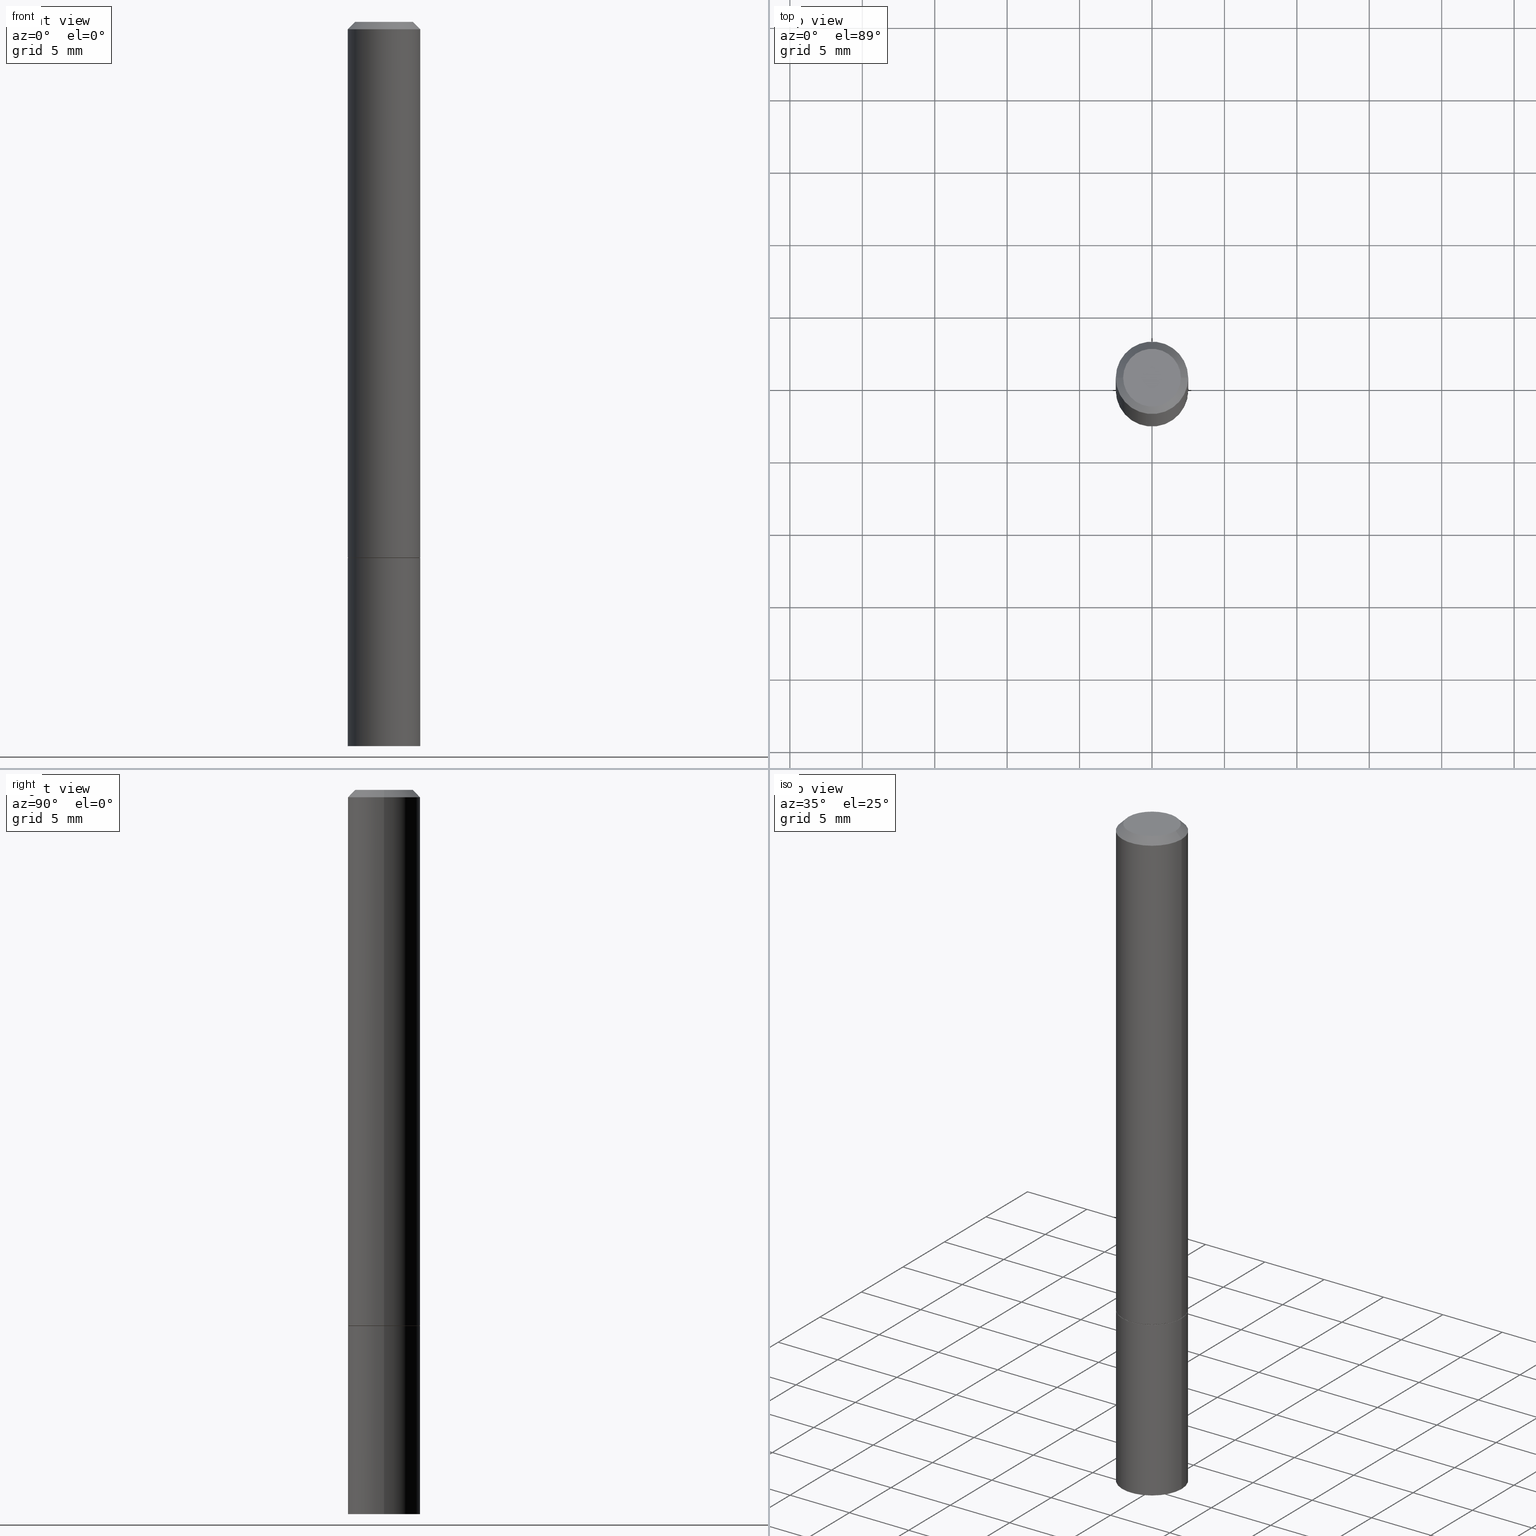
[diagram: canonical four-view strip — front | top / right | iso, engineering-drawing reading convention]
A machine part, canonical four-view strip (front | top / right | iso — engineering-drawing reading convention). The complete STEP part file that produces these views, byte-faithful:
ISO-10303-21;
HEADER;
FILE_DESCRIPTION (( 'STEP AP203' ),
    '1' );
FILE_NAME ('44552.STEP',
    '2024-02-28T06:40:56',
    ( '' ),
    ( '' ),
    'SwSTEP 2.0',
    'SolidWorks 2023',
    '' );
FILE_SCHEMA (( 'CONFIG_CONTROL_DESIGN' ));
ENDSEC;

DATA;
#1 = EDGE_LOOP ( 'NONE', ( #33, #95, #199, #168 ) ) ;
#2 = CARTESIAN_POINT ( 'NONE',  ( 0.000000000000000000, 0.000000000000000000, 0.000000000000000000 ) ) ;
#3 = CARTESIAN_POINT ( 'NONE',  ( -0.09845000000000000973, -1.876660182509593708E-15, -1.455699999999999994 ) ) ;
#4 = LINE ( 'NONE', #189, #74 ) ;
#5 = ORIENTED_EDGE ( 'NONE', *, *, #67, .F. ) ;
#6 = VECTOR ( 'NONE', #123, 39.37007874015748143 ) ;
#7 = ADVANCED_FACE ( 'NONE', ( #17 ), #233, .F. ) ;
#8 = AXIS2_PLACEMENT_3D ( 'NONE', #348, #98, #349 ) ;
#9 = DIRECTION ( 'NONE',  ( 1.000000000000000000, -6.982962677686265922E-15, 4.876176775795935793E-29 ) ) ;
#10 = ADVANCED_FACE ( 'NONE', ( #79 ), #136, .T. ) ;
#11 = DATE_AND_TIME ( #41, #149 ) ;
#12 = DIRECTION ( 'NONE',  ( -2.445468806185136877E-29, 3.491481338843145188E-15, 1.000000000000000000 ) ) ;
#13 = LOCAL_TIME ( 1, 40, 56.00000000000000000, #191 ) ;
#14 = AXIS2_PLACEMENT_3D ( 'NONE', #138, #232, #194 ) ;
#15 = APPROVAL_DATE_TIME ( #155, #131 ) ;
#16 = APPROVAL_DATE_TIME ( #323, #181 ) ;
#17 = FACE_OUTER_BOUND ( 'NONE', #262, .T. ) ;
#18 = AXIS2_PLACEMENT_3D ( 'NONE', #91, #92, #209 ) ;
#19 = ORIENTED_EDGE ( 'NONE', *, *, #57, .T. ) ;
#20 = DIRECTION ( 'NONE',  ( -2.438088387897960049E-29, 3.491481338843145188E-15, 1.000000000000000000 ) ) ;
#21 = DIRECTION ( 'NONE',  ( 0.7071067811865464625, -7.319954787623252890E-15, -0.7071067811865485719 ) ) ;
#22 = DIRECTION ( 'NONE',  ( -2.445468806185136597E-29, 3.491481338843145583E-15, 1.000000000000000000 ) ) ;
#23 = DIRECTION ( 'NONE',  ( 1.000000000000000000, -6.982962677686265922E-15, 4.876176775795935793E-29 ) ) ;
#24 = ORIENTED_EDGE ( 'NONE', *, *, #177, .T. ) ;
#25 = CONICAL_SURFACE ( 'NONE', #247, 0.09844999999999980156, 0.7853981633974468357 ) ;
#26 = CC_DESIGN_PERSON_AND_ORGANIZATION_ASSIGNMENT ( #270, #107, ( #154 ) ) ;
#27 = VERTEX_POINT ( 'NONE', #251 ) ;
#28 = ORGANIZATION ( 'UNSPECIFIED', 'UNSPECIFIED', '' ) ;
#29 = DIRECTION ( 'NONE',  ( -2.445468806185136597E-29, 3.491481338843145583E-15, 1.000000000000000000 ) ) ;
#30 = LENGTH_MEASURE_WITH_UNIT ( LENGTH_MEASURE( 0.02539999999999999897 ), #264 );
#31 = ORIENTED_EDGE ( 'NONE', *, *, #67, .T. ) ;
#32 = CARTESIAN_POINT ( 'NONE',  ( 0.000000000000000000, 0.000000000000000000, 0.000000000000000000 ) ) ;
#33 = ORIENTED_EDGE ( 'NONE', *, *, #320, .F. ) ;
#34 = CARTESIAN_POINT ( 'NONE',  ( -0.09844999999999999585, -5.279981617546952572E-15, -1.968500000000000139 ) ) ;
#35 = CARTESIAN_POINT ( 'NONE',  ( 0.07844999999999985318, -6.417258612913222427E-16, 4.159044147803933312E-30 ) ) ;
#36 = EDGE_CURVE ( 'NONE', #255, #27, #166, .T. ) ;
#37 = DIRECTION ( 'NONE',  ( -2.445468806185136877E-29, 3.491481338843145188E-15, 1.000000000000000000 ) ) ;
#38 = MANIFOLD_SOLID_BREP ( 'Body-Move/Copy2[1]', #266 ) ;
#39 = CIRCLE ( 'NONE', #106, 0.09844999999999980156 ) ;
#40 = APPLICATION_PROTOCOL_DEFINITION ( 'international standard', 'config_control_design', 1994, #274 ) ;
#41 = CALENDAR_DATE ( 2024, 28, 2 ) ;
#42 = CONICAL_SURFACE ( 'NONE', #18, 0.09844999999999980156, 0.7853981633974468357 ) ;
#43 = PERSON_AND_ORGANIZATION ( #360, #28 ) ;
#44 = PRODUCT_DEFINITION_SHAPE ( 'NONE', 'NONE',  #346 ) ;
#45 = VERTEX_POINT ( 'NONE', #137 ) ;
#46 = VERTEX_POINT ( 'NONE', #329 ) ;
#47 = CIRCLE ( 'NONE', #145, 0.07844999999999985318 ) ;
#48 = CARTESIAN_POINT ( 'NONE',  ( 3.559868941163703312E-29, -5.082549384953967438E-15, -1.455699999999999994 ) ) ;
#49 = CARTESIAN_POINT ( 'NONE',  ( 0.000000000000000000, 0.000000000000000000, 0.000000000000000000 ) ) ;
#50 = ORIENTED_EDGE ( 'NONE', *, *, #108, .F. ) ;
#51 = CARTESIAN_POINT ( 'NONE',  ( 6.874726756182484532E-16, 0.09844999999999490270, -1.456700000000000328 ) ) ;
#52 = DIMENSIONAL_EXPONENTS ( 1.000000000000000000, 0.000000000000000000, 0.000000000000000000, 0.000000000000000000, 0.000000000000000000, 0.000000000000000000, 0.000000000000000000 ) ;
#53 = EDGE_LOOP ( 'NONE', ( #364, #238 ) ) ;
#54 = DIRECTION ( 'NONE',  ( 2.438088387897960049E-29, -3.491481338843145188E-15, -1.000000000000000000 ) ) ;
#55 = AXIS2_PLACEMENT_3D ( 'NONE', #111, #226, #331 ) ;
#56 = DIRECTION ( 'NONE',  ( -2.445468806185136597E-29, 3.491481338843145583E-15, 1.000000000000000000 ) ) ;
#57 = EDGE_CURVE ( 'NONE', #45, #352, #77, .T. ) ;
#58 = CYLINDRICAL_SURFACE ( 'NONE', #162, 0.09844999999999991258 ) ;
#59 = CC_DESIGN_DATE_AND_TIME_ASSIGNMENT ( #11, #187, ( #346 ) ) ;
#60 = FACE_OUTER_BOUND ( 'NONE', #333, .T. ) ;
#61 = VECTOR ( 'NONE', #224, 39.37007874015748143 ) ;
#62 = FACE_OUTER_BOUND ( 'NONE', #164, .T. ) ;
#63 = ADVANCED_FACE ( 'NONE', ( #110 ), #25, .T. ) ;
#64 = ORIENTED_EDGE ( 'NONE', *, *, #223, .T. ) ;
#65 = CARTESIAN_POINT ( 'NONE',  ( 0.09844999999999980156, -7.452456546574689274E-16, -0.02000000000000001776 ) ) ;
#66 = CARTESIAN_POINT ( 'NONE',  ( 3.559868941163703312E-29, -5.082549384953967438E-15, -1.455699999999999994 ) ) ;
#67 = EDGE_CURVE ( 'NONE', #356, #143, #152, .T. ) ;
#68 = ORIENTED_EDGE ( 'NONE', *, *, #254, .T. ) ;
#69 = APPROVAL_STATUS ( 'not_yet_approved' ) ;
#70 = CIRCLE ( 'NONE', #366, 0.09844999999999980156 ) ;
#71 = APPROVAL_STATUS ( 'not_yet_approved' ) ;
#72 = FACE_OUTER_BOUND ( 'NONE', #258, .T. ) ;
#73 = PERSON_AND_ORGANIZATION ( #360, #28 ) ;
#74 = VECTOR ( 'NONE', #12, 39.37007874015748143 ) ;
#75 = APPROVAL_ROLE ( '' ) ;
#76 = ORIENTED_EDGE ( 'NONE', *, *, #205, .F. ) ;
#77 = LINE ( 'NONE', #252, #132 ) ;
#78 = CARTESIAN_POINT ( 'NONE',  ( 0.000000000000000000, 0.000000000000000000, 0.000000000000000000 ) ) ;
#79 = FACE_OUTER_BOUND ( 'NONE', #358, .T. ) ;
#80 = CIRCLE ( 'NONE', #318, 0.09844999999999999585 ) ;
#81 = FACE_OUTER_BOUND ( 'NONE', #192, .T. ) ;
#82 = ORIENTED_EDGE ( 'NONE', *, *, #134, .F. ) ;
#83 = APPROVAL_PERSON_ORGANIZATION ( #103, #131, #100 ) ;
#84 = CARTESIAN_POINT ( 'NONE',  ( -0.09744999999999999496, -4.393616970294593343E-15, -1.456700000000000106 ) ) ;
#85 = EDGE_LOOP ( 'NONE', ( #141, #124, #361, #230 ) ) ;
#86 = DIRECTION ( 'NONE',  ( -2.445468806185136597E-29, 3.491481338843145583E-15, 1.000000000000000000 ) ) ;
#87 = CARTESIAN_POINT ( 'NONE',  ( -0.09844999999999999585, 6.995293233558186035E-16, -4.842691596355954042E-30 ) ) ;
#88 = AXIS2_PLACEMENT_3D ( 'NONE', #169, #20, #23 ) ;
#89 = FACE_OUTER_BOUND ( 'NONE', #53, .T. ) ;
#90 = DIRECTION ( 'NONE',  ( -2.445468806185136597E-29, 3.491481338843145583E-15, 1.000000000000000000 ) ) ;
#91 = CARTESIAN_POINT ( 'NONE',  ( 4.890937612370276662E-31, -6.982962677686296539E-17, -0.02000000000000001776 ) ) ;
#92 = DIRECTION ( 'NONE',  ( 2.445468806185136597E-29, -3.491481338843145583E-15, -1.000000000000000000 ) ) ;
#93 = EDGE_CURVE ( 'NONE', #342, #46, #146, .T. ) ;
#94 = AXIS2_PLACEMENT_3D ( 'NONE', #78, #234, #335 ) ;
#95 = ORIENTED_EDGE ( 'NONE', *, *, #134, .T. ) ;
#96 = CARTESIAN_POINT ( 'NONE',  ( 0.09845000000000000973, -5.770022060572179999E-15, -1.455699999999999994 ) ) ;
#97 = APPROVAL_PERSON_ORGANIZATION ( #73, #181, #184 ) ;
#98 = DIRECTION ( 'NONE',  ( 0.000000000000000000, 0.000000000000000000, 1.000000000000000000 ) ) ;
#99 = AXIS2_PLACEMENT_3D ( 'NONE', #357, #86, #313 ) ;
#100 = APPROVAL_ROLE ( '' ) ;
#101 =( GEOMETRIC_REPRESENTATION_CONTEXT ( 3 ) GLOBAL_UNCERTAINTY_ASSIGNED_CONTEXT ( ( #217 ) ) GLOBAL_UNIT_ASSIGNED_CONTEXT ( ( #122, #321, #210 ) ) REPRESENTATION_CONTEXT ( 'NONE', 'WORKASPACE' ) );
#102 = APPROVAL ( #186, 'UNSPECIFIED' ) ;
#103 = PERSON_AND_ORGANIZATION ( #360, #28 ) ;
#104 = PERSON_AND_ORGANIZATION ( #360, #28 ) ;
#105 = CIRCLE ( 'NONE', #55, 0.09844999999999999585 ) ;
#106 = AXIS2_PLACEMENT_3D ( 'NONE', #286, #317, #365 ) ;
#107 = PERSON_AND_ORGANIZATION_ROLE ( 'classification_officer' ) ;
#108 = EDGE_CURVE ( 'NONE', #143, #27, #4, .T. ) ;
#109 = CARTESIAN_POINT ( 'NONE',  ( -0.09844999999999980156, 6.176430488413486702E-16, -0.02000000000000001776 ) ) ;
#110 = FACE_OUTER_BOUND ( 'NONE', #1, .T. ) ;
#111 = CARTESIAN_POINT ( 'NONE',  ( 4.813905344975441835E-29, -6.872981015512731707E-15, -1.968500000000000139 ) ) ;
#112 = ORIENTED_EDGE ( 'NONE', *, *, #218, .T. ) ;
#113 = AXIS2_PLACEMENT_3D ( 'NONE', #49, #139, #229 ) ;
#114 = PLANE ( 'NONE',  #278 ) ;
#115 = ORIENTED_EDGE ( 'NONE', *, *, #246, .F. ) ;
#116 = VERTEX_POINT ( 'NONE', #359 ) ;
#117 = LINE ( 'NONE', #310, #203 ) ;
#118 = ADVANCED_FACE ( 'NONE', ( #334 ), #197, .T. ) ;
#119 = CYLINDRICAL_SURFACE ( 'NONE', #94, 0.09844999999999999585 ) ;
#120 = ORIENTED_EDGE ( 'NONE', *, *, #223, .F. ) ;
#121 = AXIS2_PLACEMENT_3D ( 'NONE', #256, #315, #253 ) ;
#122 =( CONVERSION_BASED_UNIT ( 'INCH', #30 ) LENGTH_UNIT ( ) NAMED_UNIT ( #52 ) );
#123 = DIRECTION ( 'NONE',  ( -2.445468806185136877E-29, 3.491481338843145188E-15, 1.000000000000000000 ) ) ;
#124 = ORIENTED_EDGE ( 'NONE', *, *, #93, .T. ) ;
#125 = CARTESIAN_POINT ( 'NONE',  ( 0.09844999999999999585, -5.773513541911023795E-15, -1.456700000000000106 ) ) ;
#126 = ORIENTED_EDGE ( 'NONE', *, *, #172, .F. ) ;
#127 = CIRCLE ( 'NONE', #299, 0.07844999999999985318 ) ;
#128 = DIRECTION ( 'NONE',  ( -2.445468806185136597E-29, 3.491481338843145583E-15, 1.000000000000000000 ) ) ;
#129 = SECURITY_CLASSIFICATION_LEVEL ( 'unclassified' ) ;
#130 = SHAPE_DEFINITION_REPRESENTATION ( #44, #235 ) ;
#131 = APPROVAL ( #71, 'UNSPECIFIED' ) ;
#132 = VECTOR ( 'NONE', #195, 39.37007874015748143 ) ;
#133 = PERSON_AND_ORGANIZATION ( #360, #28 ) ;
#134 = EDGE_CURVE ( 'NONE', #283, #178, #288, .T. ) ;
#135 = DATE_TIME_ROLE ( 'classification_date' ) ;
#136 = PLANE ( 'NONE',  #339 ) ;
#137 = CARTESIAN_POINT ( 'NONE',  ( 0.09844999999999999585, -7.560453691130944267E-15, -1.968500000000000139 ) ) ;
#138 = CARTESIAN_POINT ( 'NONE',  ( 3.562314409969888915E-29, -5.086040866292811234E-15, -1.456700000000000106 ) ) ;
#139 = DIRECTION ( 'NONE',  ( -2.445468806185136597E-29, 3.491481338843145583E-15, 1.000000000000000000 ) ) ;
#140 = CLOSED_SHELL ( 'NONE', ( #291, #261, #63, #277, #244, #304, #213, #7 ) ) ;
#141 = ORIENTED_EDGE ( 'NONE', *, *, #211, .T. ) ;
#142 = LINE ( 'NONE', #84, #215 ) ;
#143 = VERTEX_POINT ( 'NONE', #3 ) ;
#144 = LOCAL_TIME ( 1, 40, 56.00000000000000000, #271 ) ;
#145 = AXIS2_PLACEMENT_3D ( 'NONE', #148, #90, #9 ) ;
#146 = LINE ( 'NONE', #87, #6 ) ;
#147 = ORIENTED_EDGE ( 'NONE', *, *, #36, .T. ) ;
#148 = CARTESIAN_POINT ( 'NONE',  ( 0.000000000000000000, 0.000000000000000000, 0.000000000000000000 ) ) ;
#149 = LOCAL_TIME ( 1, 40, 56.00000000000000000, #249 ) ;
#150 = CARTESIAN_POINT ( 'NONE',  ( 4.890937612370276662E-31, -6.982962677686296539E-17, -0.02000000000000001776 ) ) ;
#151 = DIRECTION ( 'NONE',  ( 1.000000000000000000, -6.982962677686266711E-15, 0.000000000000000000 ) ) ;
#152 = CIRCLE ( 'NONE', #350, 0.09845000000000000973 ) ;
#153 = DATE_AND_TIME ( #300, #13 ) ;
#154 = SECURITY_CLASSIFICATION ( '', '', #129 ) ;
#155 = DATE_AND_TIME ( #188, #174 ) ;
#156 = CIRCLE ( 'NONE', #227, 0.09844999999999999585 ) ;
#157 = ADVANCED_FACE ( 'NONE', ( #72 ), #119, .T. ) ;
#158 = PERSON_AND_ORGANIZATION_ROLE ( 'design_owner' ) ;
#159 = PRODUCT_RELATED_PRODUCT_CATEGORY ( 'detail', '', ( #182 ) ) ;
#160 = APPLICATION_CONTEXT ( 'configuration controlled 3d designs of mechanical parts and assemblies' ) ;
#161 = EDGE_LOOP ( 'NONE', ( #294, #316, #112, #336 ) ) ;
#162 = AXIS2_PLACEMENT_3D ( 'NONE', #2, #179, #243 ) ;
#163 = ORIENTED_EDGE ( 'NONE', *, *, #201, .T. ) ;
#164 = EDGE_LOOP ( 'NONE', ( #82, #202, #147, #204 ) ) ;
#165 = DIRECTION ( 'NONE',  ( 1.000000000000000000, -6.982962677686265922E-15, 0.000000000000000000 ) ) ;
#166 = LINE ( 'NONE', #109, #61 ) ;
#167 = CC_DESIGN_PERSON_AND_ORGANIZATION_ASSIGNMENT ( #104, #351, ( #325 ) ) ;
#168 = ORIENTED_EDGE ( 'NONE', *, *, #36, .F. ) ;
#169 = CARTESIAN_POINT ( 'NONE',  ( 3.562314409969888915E-29, -5.086040866292811234E-15, -1.456700000000000106 ) ) ;
#170 = DIRECTION ( 'NONE',  ( -1.000000000000000000, 6.982962677686265922E-15, -4.876176775795935793E-29 ) ) ;
#171 = DIRECTION ( 'NONE',  ( -1.000000000000000000, 6.982962677686265922E-15, -4.876176775795935793E-29 ) ) ;
#172 = EDGE_CURVE ( 'NONE', #116, #268, #314, .T. ) ;
#173 = CARTESIAN_POINT ( 'NONE',  ( 3.562314409969888915E-29, -5.086040866292811234E-15, -1.456700000000000106 ) ) ;
#174 = LOCAL_TIME ( 1, 40, 56.00000000000000000, #219 ) ;
#175 = ORIENTED_EDGE ( 'NONE', *, *, #218, .F. ) ;
#176 = DIRECTION ( 'NONE',  ( 1.000000000000000000, -6.982962677686265922E-15, 0.000000000000000000 ) ) ;
#177 = EDGE_CURVE ( 'NONE', #268, #116, #222, .T. ) ;
#178 = VERTEX_POINT ( 'NONE', #354 ) ;
#179 = DIRECTION ( 'NONE',  ( -2.445468806185136597E-29, 3.491481338843145583E-15, 1.000000000000000000 ) ) ;
#180 = DIRECTION ( 'NONE',  ( -2.445468806185136597E-29, 3.491481338843145583E-15, 1.000000000000000000 ) ) ;
#181 = APPROVAL ( #69, 'UNSPECIFIED' ) ;
#182 = PRODUCT ( '44552', '44552', '', ( #345 ) ) ;
#183 = FACE_OUTER_BOUND ( 'NONE', #228, .T. ) ;
#184 = APPROVAL_ROLE ( '' ) ;
#185 = CONICAL_SURFACE ( 'NONE', #208, 0.09744999999999999496, 0.7853981633974227439 ) ;
#186 = APPROVAL_STATUS ( 'not_yet_approved' ) ;
#187 = DATE_TIME_ROLE ( 'creation_date' ) ;
#188 = CALENDAR_DATE ( 2024, 28, 2 ) ;
#189 = CARTESIAN_POINT ( 'NONE',  ( -0.09844999999999991258, 6.995293233558180118E-16, -4.842691596355949838E-30 ) ) ;
#190 = CONICAL_SURFACE ( 'NONE', #287, 0.09744999999999999496, 0.7853981633974227439 ) ;
#191 = COORDINATED_UNIVERSAL_TIME_OFFSET ( 5, 0, .BEHIND. ) ;
#192 = EDGE_LOOP ( 'NONE', ( #50, #68, #265, #115 ) ) ;
#193 = ORIENTED_EDGE ( 'NONE', *, *, #177, .F. ) ;
#194 = DIRECTION ( 'NONE',  ( 1.000000000000000000, -6.982962677686264344E-15, 0.000000000000000000 ) ) ;
#195 = DIRECTION ( 'NONE',  ( -2.445468806185136877E-29, 3.491481338843145188E-15, 1.000000000000000000 ) ) ;
#196 = CC_DESIGN_PERSON_AND_ORGANIZATION_ASSIGNMENT ( #133, #216, ( #325 ) ) ;
#197 = CYLINDRICAL_SURFACE ( 'NONE', #257, 0.09844999999999999585 ) ;
#198 = CYLINDRICAL_SURFACE ( 'NONE', #113, 0.09844999999999991258 ) ;
#199 = ORIENTED_EDGE ( 'NONE', *, *, #337, .T. ) ;
#200 = ADVANCED_FACE ( 'NONE', ( #89 ), #114, .F. ) ;
#201 = EDGE_CURVE ( 'NONE', #116, #143, #142, .T. ) ;
#202 = ORIENTED_EDGE ( 'NONE', *, *, #344, .F. ) ;
#203 = VECTOR ( 'NONE', #338, 39.37007874015748143 ) ;
#204 = ORIENTED_EDGE ( 'NONE', *, *, #246, .T. ) ;
#205 = EDGE_CURVE ( 'NONE', #46, #352, #332, .T. ) ;
#206 = DIRECTION ( 'NONE',  ( -2.445468806185136597E-29, 3.491481338843145583E-15, 1.000000000000000000 ) ) ;
#207 = LOCAL_TIME ( 1, 40, 56.00000000000000000, #324 ) ;
#208 = AXIS2_PLACEMENT_3D ( 'NONE', #319, #180, #295 ) ;
#209 = DIRECTION ( 'NONE',  ( -1.000000000000000000, 6.982962677686266711E-15, 0.000000000000000000 ) ) ;
#210 =( NAMED_UNIT ( * ) SI_UNIT ( $, .STERADIAN. ) SOLID_ANGLE_UNIT ( ) );
#211 = EDGE_CURVE ( 'NONE', #45, #342, #156, .T. ) ;
#212 = EDGE_LOOP ( 'NONE', ( #193, #126 ) ) ;
#213 = ADVANCED_FACE ( 'NONE', ( #281 ), #363, .F. ) ;
#214 = CALENDAR_DATE ( 2024, 28, 2 ) ;
#215 = VECTOR ( 'NONE', #289, 39.37007874015748143 ) ;
#216 = PERSON_AND_ORGANIZATION_ROLE ( 'creator' ) ;
#217 = UNCERTAINTY_MEASURE_WITH_UNIT (LENGTH_MEASURE( 1.000000000000000082E-05 ), #122, 'distance_accuracy_value', 'NONE');
#218 = EDGE_CURVE ( 'NONE', #268, #356, #117, .T. ) ;
#219 = COORDINATED_UNIVERSAL_TIME_OFFSET ( 5, 0, .BEHIND. ) ;
#220 = APPROVAL_PERSON_ORGANIZATION ( #327, #102, #75 ) ;
#221 = DATE_AND_TIME ( #269, #207 ) ;
#222 = CIRCLE ( 'NONE', #14, 0.09744999999999999496 ) ;
#223 = EDGE_CURVE ( 'NONE', #342, #45, #105, .T. ) ;
#224 = DIRECTION ( 'NONE',  ( -0.7071067811865464625, 2.468850131082245622E-15, -0.7071067811865485719 ) ) ;
#225 = CARTESIAN_POINT ( 'NONE',  ( 4.890937612370276662E-31, -6.982962677686296539E-17, -0.02000000000000001776 ) ) ;
#226 = DIRECTION ( 'NONE',  ( -2.445468806185136597E-29, 3.491481338843145583E-15, 1.000000000000000000 ) ) ;
#227 = AXIS2_PLACEMENT_3D ( 'NONE', #312, #307, #165 ) ;
#228 = EDGE_LOOP ( 'NONE', ( #31, #290, #241, #248 ) ) ;
#229 = DIRECTION ( 'NONE',  ( 1.000000000000000000, -6.982962677686266711E-15, 4.876176775795935793E-29 ) ) ;
#230 = ORIENTED_EDGE ( 'NONE', *, *, #57, .F. ) ;
#231 = DIRECTION ( 'NONE',  ( 1.000000000000000000, -6.982962677686266711E-15, 4.876176775795936353E-29 ) ) ;
#232 = DIRECTION ( 'NONE',  ( -2.445468806185136597E-29, 3.491481338843145583E-15, 1.000000000000000000 ) ) ;
#233 = PLANE ( 'NONE',  #328 ) ;
#234 = DIRECTION ( 'NONE',  ( -2.445468806185136597E-29, 3.491481338843145583E-15, 1.000000000000000000 ) ) ;
#235 = ADVANCED_BREP_SHAPE_REPRESENTATION ( '44552', ( #38, #280, #8 ), #101 ) ;
#236 = ORIENTED_EDGE ( 'NONE', *, *, #211, .F. ) ;
#237 = LINE ( 'NONE', #259, #250 ) ;
#238 = ORIENTED_EDGE ( 'NONE', *, *, #205, .T. ) ;
#239 = DIRECTION ( 'NONE',  ( 1.000000000000000000, -6.982962677686264344E-15, 0.000000000000000000 ) ) ;
#240 = DIRECTION ( 'NONE',  ( 1.000000000000000000, -6.982962677686265133E-15, 0.000000000000000000 ) ) ;
#241 = ORIENTED_EDGE ( 'NONE', *, *, #337, .F. ) ;
#242 = VECTOR ( 'NONE', #21, 39.37007874015748143 ) ;
#243 = DIRECTION ( 'NONE',  ( 1.000000000000000000, -6.982962677686266711E-15, 4.876176775795935793E-29 ) ) ;
#244 = ADVANCED_FACE ( 'NONE', ( #81 ), #198, .T. ) ;
#245 = CC_DESIGN_APPROVAL ( #181, ( #325 ) ) ;
#246 = EDGE_CURVE ( 'NONE', #27, #178, #39, .T. ) ;
#247 = AXIS2_PLACEMENT_3D ( 'NONE', #225, #309, #330 ) ;
#248 = ORIENTED_EDGE ( 'NONE', *, *, #263, .F. ) ;
#249 = COORDINATED_UNIVERSAL_TIME_OFFSET ( 5, 0, .BEHIND. ) ;
#250 = VECTOR ( 'NONE', #37, 39.37007874015748143 ) ;
#251 = CARTESIAN_POINT ( 'NONE',  ( -0.09844999999999980156, 6.176430488413486702E-16, -0.02000000000000001776 ) ) ;
#252 = CARTESIAN_POINT ( 'NONE',  ( 0.09844999999999999585, -6.874726756182129545E-16, 4.800596035771099214E-30 ) ) ;
#253 = DIRECTION ( 'NONE',  ( 1.000000000000000000, -6.982962677686265922E-15, 0.000000000000000000 ) ) ;
#254 = EDGE_CURVE ( 'NONE', #143, #356, #308, .T. ) ;
#255 = VERTEX_POINT ( 'NONE', #341 ) ;
#256 = CARTESIAN_POINT ( 'NONE',  ( 3.562314409969888915E-29, -5.086040866292811234E-15, -1.456700000000000106 ) ) ;
#257 = AXIS2_PLACEMENT_3D ( 'NONE', #285, #29, #231 ) ;
#258 = EDGE_LOOP ( 'NONE', ( #311, #64, #19, #76 ) ) ;
#259 = CARTESIAN_POINT ( 'NONE',  ( 0.09844999999999991258, -6.874726756182123629E-16, 4.800596035771094310E-30 ) ) ;
#260 = CC_DESIGN_PERSON_AND_ORGANIZATION_ASSIGNMENT ( #326, #272, ( #346 ) ) ;
#261 = ADVANCED_FACE ( 'NONE', ( #183 ), #58, .T. ) ;
#262 = EDGE_LOOP ( 'NONE', ( #296, #275 ) ) ;
#263 = EDGE_CURVE ( 'NONE', #356, #178, #237, .T. ) ;
#264 =( LENGTH_UNIT ( ) NAMED_UNIT ( * ) SI_UNIT ( $, .METRE. ) );
#265 = ORIENTED_EDGE ( 'NONE', *, *, #263, .T. ) ;
#266 = CLOSED_SHELL ( 'NONE', ( #118, #10, #200, #157 ) ) ;
#267 = FACE_OUTER_BOUND ( 'NONE', #161, .T. ) ;
#268 = VERTEX_POINT ( 'NONE', #293 ) ;
#269 = CALENDAR_DATE ( 2024, 28, 2 ) ;
#270 = PERSON_AND_ORGANIZATION ( #360, #28 ) ;
#271 = COORDINATED_UNIVERSAL_TIME_OFFSET ( 5, 0, .BEHIND. ) ;
#272 = PERSON_AND_ORGANIZATION_ROLE ( 'creator' ) ;
#273 = EDGE_CURVE ( 'NONE', #352, #46, #80, .T. ) ;
#274 = APPLICATION_CONTEXT ( 'configuration controlled 3d designs of mechanical parts and assemblies' ) ;
#275 = ORIENTED_EDGE ( 'NONE', *, *, #320, .T. ) ;
#276 = CC_DESIGN_SECURITY_CLASSIFICATION ( #154, ( #325 ) ) ;
#277 = ADVANCED_FACE ( 'NONE', ( #62 ), #42, .T. ) ;
#278 = AXIS2_PLACEMENT_3D ( 'NONE', #51, #54, #171 ) ;
#279 = DIRECTION ( 'NONE',  ( -1.000000000000000000, 6.982962677686265922E-15, -4.876176775795935793E-29 ) ) ;
#280 = MANIFOLD_SOLID_BREP ( 'Body-Move/Copy2[2]', #140 ) ;
#281 = FACE_OUTER_BOUND ( 'NONE', #212, .T. ) ;
#282 = CARTESIAN_POINT ( 'NONE',  ( 5.478134220644865553E-16, 0.07844999999999985318, -2.739067110322442144E-16 ) ) ;
#283 = VERTEX_POINT ( 'NONE', #35 ) ;
#284 = CC_DESIGN_APPROVAL ( #102, ( #154 ) ) ;
#285 = CARTESIAN_POINT ( 'NONE',  ( 0.000000000000000000, 0.000000000000000000, 0.000000000000000000 ) ) ;
#286 = CARTESIAN_POINT ( 'NONE',  ( 4.890937612370276662E-31, -6.982962677686296539E-17, -0.02000000000000001776 ) ) ;
#287 = AXIS2_PLACEMENT_3D ( 'NONE', #173, #128, #239 ) ;
#288 = LINE ( 'NONE', #65, #242 ) ;
#289 = DIRECTION ( 'NONE',  ( -0.7071067811865294761, 7.493145998870289474E-15, 0.7071067811865655584 ) ) ;
#290 = ORIENTED_EDGE ( 'NONE', *, *, #108, .T. ) ;
#291 = ADVANCED_FACE ( 'NONE', ( #60 ), #185, .T. ) ;
#292 = CARTESIAN_POINT ( 'NONE',  ( 3.562314409969888915E-29, -5.086040866292811234E-15, -1.456700000000000106 ) ) ;
#293 = CARTESIAN_POINT ( 'NONE',  ( 0.09744999999999999496, -5.766530579233336991E-15, -1.456700000000000106 ) ) ;
#294 = ORIENTED_EDGE ( 'NONE', *, *, #201, .F. ) ;
#295 = DIRECTION ( 'NONE',  ( 1.000000000000000000, -6.982962677686264344E-15, 0.000000000000000000 ) ) ;
#296 = ORIENTED_EDGE ( 'NONE', *, *, #344, .T. ) ;
#297 = DIRECTION ( 'NONE',  ( 1.000000000000000000, -6.982962677686265133E-15, 0.000000000000000000 ) ) ;
#298 = DIRECTION ( 'NONE',  ( -2.445468806185136597E-29, 3.491481338843145583E-15, 1.000000000000000000 ) ) ;
#299 = AXIS2_PLACEMENT_3D ( 'NONE', #32, #298, #343 ) ;
#300 = CALENDAR_DATE ( 2024, 28, 2 ) ;
#301 = AXIS2_PLACEMENT_3D ( 'NONE', #66, #206, #297 ) ;
#302 = APPROVAL_DATE_TIME ( #153, #102 ) ;
#303 = CARTESIAN_POINT ( 'NONE',  ( 6.874726756182609764E-16, 0.09844999999999311247, -1.968500000000000361 ) ) ;
#304 = ADVANCED_FACE ( 'NONE', ( #267 ), #190, .T. ) ;
#305 = DIRECTION ( 'NONE',  ( 2.438088387897960049E-29, -3.491481338843145188E-15, -1.000000000000000000 ) ) ;
#306 = DESIGN_CONTEXT ( 'detailed design', #160, 'design' ) ;
#307 = DIRECTION ( 'NONE',  ( -2.445468806185136597E-29, 3.491481338843145583E-15, 1.000000000000000000 ) ) ;
#308 = CIRCLE ( 'NONE', #301, 0.09845000000000000973 ) ;
#309 = DIRECTION ( 'NONE',  ( 2.445468806185136597E-29, -3.491481338843145583E-15, -1.000000000000000000 ) ) ;
#310 = CARTESIAN_POINT ( 'NONE',  ( 0.09744999999999999496, -5.766530579233336991E-15, -1.456700000000000106 ) ) ;
#311 = ORIENTED_EDGE ( 'NONE', *, *, #93, .F. ) ;
#312 = CARTESIAN_POINT ( 'NONE',  ( 4.813905344975441835E-29, -6.872981015512731707E-15, -1.968500000000000139 ) ) ;
#313 = DIRECTION ( 'NONE',  ( 1.000000000000000000, -6.982962677686264344E-15, 0.000000000000000000 ) ) ;
#314 = CIRCLE ( 'NONE', #99, 0.09744999999999999496 ) ;
#315 = DIRECTION ( 'NONE',  ( -2.445468806185136597E-29, 3.491481338843145583E-15, 1.000000000000000000 ) ) ;
#316 = ORIENTED_EDGE ( 'NONE', *, *, #172, .T. ) ;
#317 = DIRECTION ( 'NONE',  ( -2.445468806185136597E-29, 3.491481338843145583E-15, 1.000000000000000000 ) ) ;
#318 = AXIS2_PLACEMENT_3D ( 'NONE', #292, #340, #176 ) ;
#319 = CARTESIAN_POINT ( 'NONE',  ( 3.562314409969888915E-29, -5.086040866292811234E-15, -1.456700000000000106 ) ) ;
#320 = EDGE_CURVE ( 'NONE', #283, #255, #127, .T. ) ;
#321 =( NAMED_UNIT ( * ) PLANE_ANGLE_UNIT ( ) SI_UNIT ( $, .RADIAN. ) );
#322 = CC_DESIGN_DATE_AND_TIME_ASSIGNMENT ( #221, #135, ( #154 ) ) ;
#323 = DATE_AND_TIME ( #214, #144 ) ;
#324 = COORDINATED_UNIVERSAL_TIME_OFFSET ( 5, 0, .BEHIND. ) ;
#325 = PRODUCT_DEFINITION_FORMATION_WITH_SPECIFIED_SOURCE ( 'ANY', '', #182, .NOT_KNOWN. ) ;
#326 = PERSON_AND_ORGANIZATION ( #360, #28 ) ;
#327 = PERSON_AND_ORGANIZATION ( #360, #28 ) ;
#328 = AXIS2_PLACEMENT_3D ( 'NONE', #282, #305, #170 ) ;
#329 = CARTESIAN_POINT ( 'NONE',  ( -0.09844999999999999585, -5.279981617546952572E-15, -1.456700000000000106 ) ) ;
#330 = DIRECTION ( 'NONE',  ( -1.000000000000000000, 6.982962677686266711E-15, 0.000000000000000000 ) ) ;
#331 = DIRECTION ( 'NONE',  ( 1.000000000000000000, -6.982962677686265922E-15, 0.000000000000000000 ) ) ;
#332 = CIRCLE ( 'NONE', #121, 0.09844999999999999585 ) ;
#333 = EDGE_LOOP ( 'NONE', ( #24, #163, #5, #175 ) ) ;
#334 = FACE_OUTER_BOUND ( 'NONE', #85, .T. ) ;
#335 = DIRECTION ( 'NONE',  ( 1.000000000000000000, -6.982962677686266711E-15, 4.876176775795936353E-29 ) ) ;
#336 = ORIENTED_EDGE ( 'NONE', *, *, #254, .F. ) ;
#337 = EDGE_CURVE ( 'NONE', #178, #27, #70, .T. ) ;
#338 = DIRECTION ( 'NONE',  ( 0.7071067811865294761, -2.468850131082068128E-15, 0.7071067811865655584 ) ) ;
#339 = AXIS2_PLACEMENT_3D ( 'NONE', #303, #353, #279 ) ;
#340 = DIRECTION ( 'NONE',  ( -2.445468806185136597E-29, 3.491481338843145583E-15, 1.000000000000000000 ) ) ;
#341 = CARTESIAN_POINT ( 'NONE',  ( -0.07844999999999985318, 5.827282354529176128E-16, -3.953055038153092165E-30 ) ) ;
#342 = VERTEX_POINT ( 'NONE', #34 ) ;
#343 = DIRECTION ( 'NONE',  ( 1.000000000000000000, -6.982962677686265922E-15, 4.876176775795935793E-29 ) ) ;
#344 = EDGE_CURVE ( 'NONE', #255, #283, #47, .T. ) ;
#345 = MECHANICAL_CONTEXT ( 'NONE', #274, 'mechanical' ) ;
#346 = PRODUCT_DEFINITION ( 'UNKNOWN', '', #325, #306 ) ;
#347 = APPLICATION_PROTOCOL_DEFINITION ( 'international standard', 'config_control_design', 1994, #160 ) ;
#348 = CARTESIAN_POINT ( 'NONE',  ( 0.000000000000000000, 0.000000000000000000, 0.000000000000000000 ) ) ;
#349 = DIRECTION ( 'NONE',  ( 1.000000000000000000, 0.000000000000000000, 0.000000000000000000 ) ) ;
#350 = AXIS2_PLACEMENT_3D ( 'NONE', #48, #22, #240 ) ;
#351 = PERSON_AND_ORGANIZATION_ROLE ( 'design_supplier' ) ;
#352 = VERTEX_POINT ( 'NONE', #125 ) ;
#353 = DIRECTION ( 'NONE',  ( 2.438088387897960049E-29, -3.491481338843145188E-15, -1.000000000000000000 ) ) ;
#354 = CARTESIAN_POINT ( 'NONE',  ( 0.09844999999999980156, -7.452456546574689274E-16, -0.02000000000000001776 ) ) ;
#355 = CC_DESIGN_PERSON_AND_ORGANIZATION_ASSIGNMENT ( #43, #158, ( #182 ) ) ;
#356 = VERTEX_POINT ( 'NONE', #96 ) ;
#357 = CARTESIAN_POINT ( 'NONE',  ( 3.562314409969888915E-29, -5.086040866292811234E-15, -1.456700000000000106 ) ) ;
#358 = EDGE_LOOP ( 'NONE', ( #236, #120 ) ) ;
#359 = CARTESIAN_POINT ( 'NONE',  ( -0.09744999999999999496, -4.388318515946370941E-15, -1.456700000000000106 ) ) ;
#360 = PERSON ( 'UNSPECIFIED', 'UNSPECIFIED', 'UNSPECIFIED', ('UNSPECIFIED'), ('UNSPECIFIED'), ('UNSPECIFIED') ) ;
#361 = ORIENTED_EDGE ( 'NONE', *, *, #273, .F. ) ;
#362 = CC_DESIGN_APPROVAL ( #131, ( #346 ) ) ;
#363 = PLANE ( 'NONE',  #88 ) ;
#364 = ORIENTED_EDGE ( 'NONE', *, *, #273, .T. ) ;
#365 = DIRECTION ( 'NONE',  ( 1.000000000000000000, -6.982962677686266711E-15, 0.000000000000000000 ) ) ;
#366 = AXIS2_PLACEMENT_3D ( 'NONE', #150, #56, #151 ) ;
ENDSEC;
END-ISO-10303-21;
